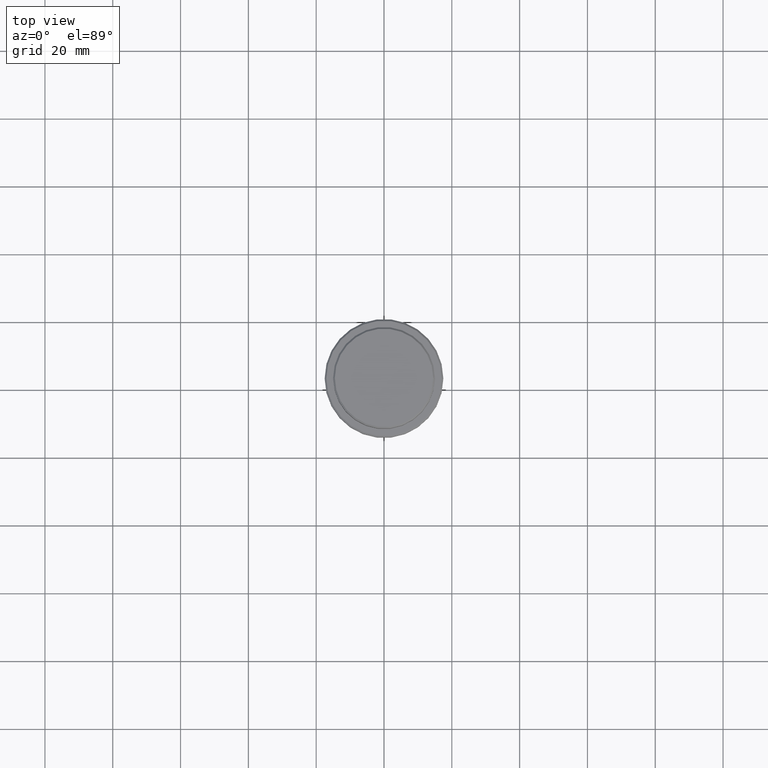
[diagram: clean part render]
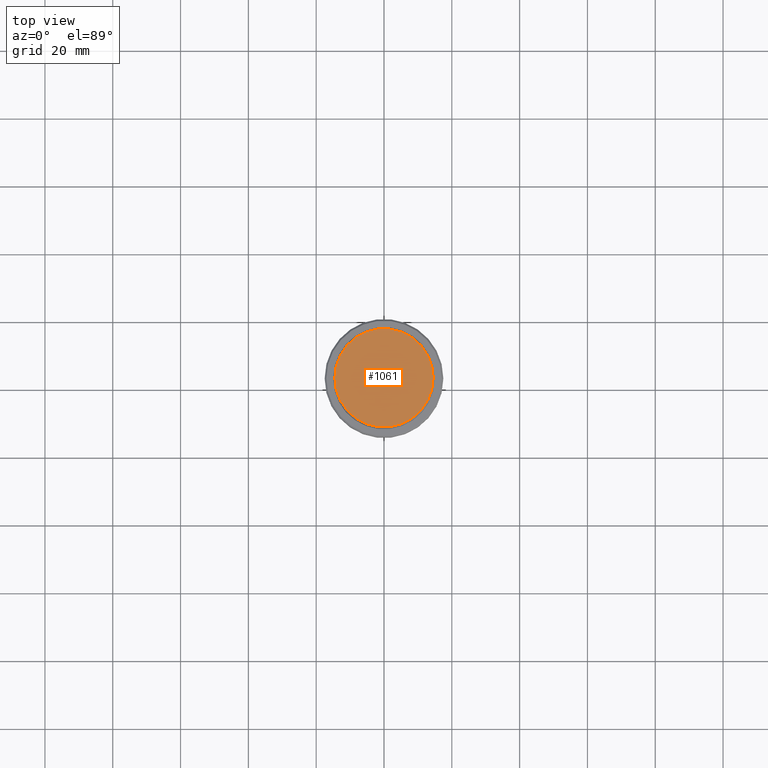
[diagram: same view with one face highlighted and labeled with its STEP entity id]
A machine part, top view. The second image highlights one B-rep face of the part: STEP entity #1061.
In plain terms, the highlighted planar face has unit normal (0, -0, 1).
Its self-contained STEP definition (entity closure, byte-faithful):
#29 = DIRECTION ( 'NONE',  ( -0.000000000000000000, -0.000000000000000000, 1.000000000000000000 ) ) ;
#98 = AXIS2_PLACEMENT_3D ( 'NONE', #718, #1040, #609 ) ;
#120 = AXIS2_PLACEMENT_3D ( 'NONE', #171, #698, #251 ) ;
#171 = CARTESIAN_POINT ( 'NONE',  ( 0.000000000000000000, 0.000000000000000000, 0.000000000000000000 ) ) ;
#251 = DIRECTION ( 'NONE',  ( 1.000000000000000000, 0.000000000000000000, 0.000000000000000000 ) ) ;
#400 = ORIENTED_EDGE ( 'NONE', *, *, #967, .T. ) ;
#438 = CARTESIAN_POINT ( 'NONE',  ( 14.49999999999998401, 1.806354028742345013E-15, 0.000000000000000000 ) ) ;
#464 = DIRECTION ( 'NONE',  ( 1.000000000000000000, 0.000000000000000000, 0.000000000000000000 ) ) ;
#486 = FACE_OUTER_BOUND ( 'NONE', #1225, .T. ) ;
#511 = AXIS2_PLACEMENT_3D ( 'NONE', #790, #29, #464 ) ;
#518 = EDGE_CURVE ( 'NONE', #727, #829, #968, .T. ) ;
#609 = DIRECTION ( 'NONE',  ( 1.000000000000000000, 0.000000000000000000, 0.000000000000000000 ) ) ;
#698 = DIRECTION ( 'NONE',  ( 0.000000000000000000, -0.000000000000000000, 1.000000000000000000 ) ) ;
#706 = PLANE ( 'NONE',  #120 ) ;
#718 = CARTESIAN_POINT ( 'NONE',  ( 0.000000000000000000, 0.000000000000000000, 0.000000000000000000 ) ) ;
#727 = VERTEX_POINT ( 'NONE', #1395 ) ;
#733 = CIRCLE ( 'NONE', #511, 14.49999999999998401 ) ;
#790 = CARTESIAN_POINT ( 'NONE',  ( 0.000000000000000000, 0.000000000000000000, 0.000000000000000000 ) ) ;
#829 = VERTEX_POINT ( 'NONE', #438 ) ;
#967 = EDGE_CURVE ( 'NONE', #829, #727, #733, .T. ) ;
#968 = CIRCLE ( 'NONE', #98, 14.49999999999998401 ) ;
#1040 = DIRECTION ( 'NONE',  ( -0.000000000000000000, -0.000000000000000000, 1.000000000000000000 ) ) ;
#1051 = ORIENTED_EDGE ( 'NONE', *, *, #518, .T. ) ;
#1061 = ADVANCED_FACE ( 'NONE', ( #486 ), #706, .T. ) ;
#1225 = EDGE_LOOP ( 'NONE', ( #1051, #400 ) ) ;
#1395 = CARTESIAN_POINT ( 'NONE',  ( -14.49999999999998401, 0.000000000000000000, 0.000000000000000000 ) ) ;